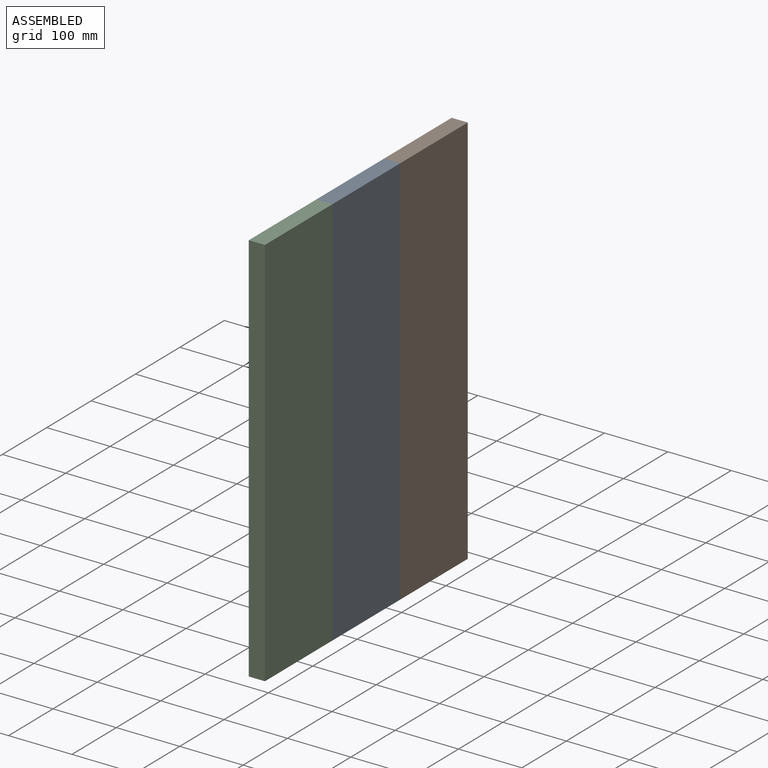
[diagram: assembled view]
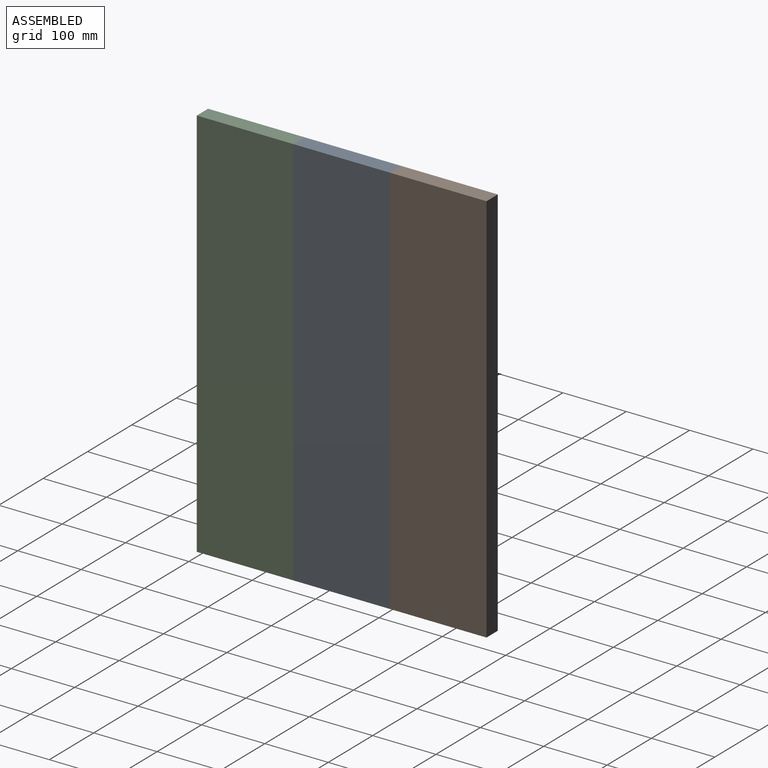
[diagram: assembled view, second angle]
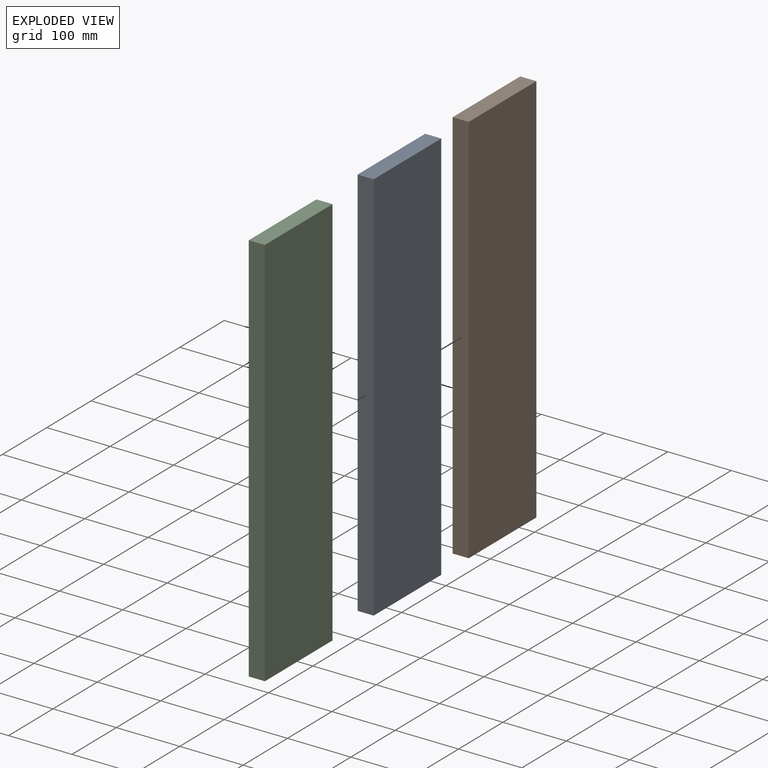
[diagram: exploded view]
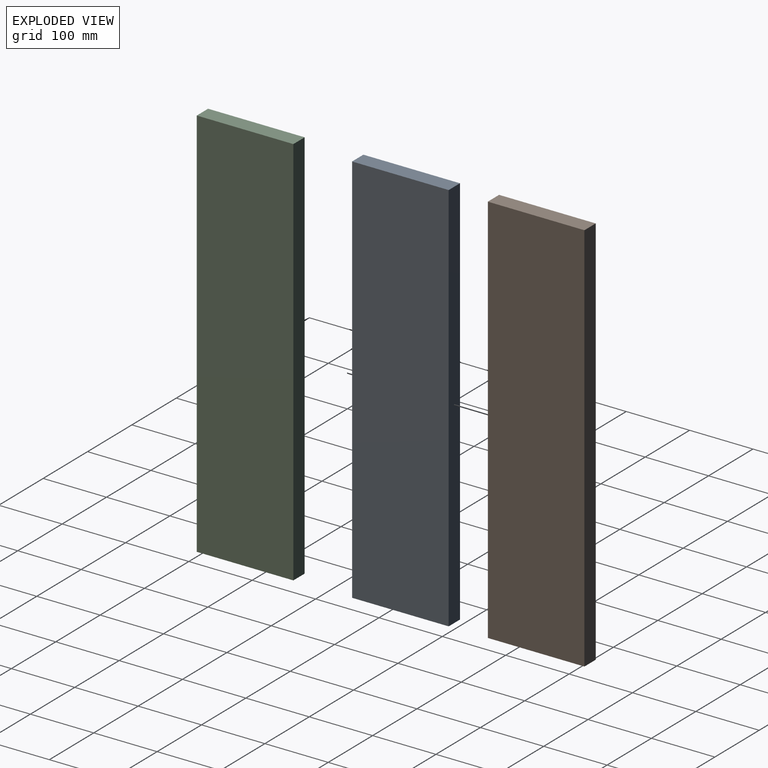
[diagram: exploded view, second angle]
ASSEMBLY  parts=3 mates=2
PART A: 6 faces, bbox 25.4x622.3x152.4 mm
  f0: plane 622.3x25.4mm, normal (0,0,1), area 15806.4mm2, adj f1,f3,f4,f5
  f1: plane 152.4x25.4mm, normal (0,-1,0), area 3871mm2, adj f0,f2,f4,f5
  f2: plane 622.3x25.4mm, normal (0,0,-1), area 15806.4mm2, adj f1,f3,f4,f5
  f3: plane 152.4x25.4mm, normal (0,1,0), area 3871mm2, adj f0,f2,f4,f5
  f4: plane 622.3x152.4mm, normal (1,0,0), area 94838.5mm2, adj f0,f1,f2,f3
  f5: plane 622.3x152.4mm, normal (-1,0,0), area 94838.5mm2, adj f0,f1,f2,f3
PART B: same geometry as A
PART C: same geometry as A
PLACE A rot(axis=(-1,0,0),90deg) t=(64.97,58.22,677.93)mm
PLACE B rot(axis=(-1,0,0),90deg) t=(64.97,210.62,677.93)mm
PLACE C rot(axis=(-1,0,0),90deg) t=(64.97,-94.18,677.93)mm
MATE fastened B.f2 <-> A.f0  axis (0,1,0) through (90.37,210.62,677.93)mm
MATE fastened A.f2 <-> C.f0  axis (0,1,0) through (90.37,58.22,677.93)mm
